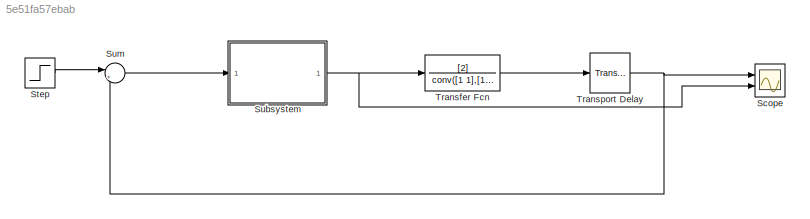
MODEL slx_5e51fa57ebab
KIND model
CONFIG AbsTol = auto
CONFIG EnableMultiTasking = off
CONFIG FixedStep = 0.5
CONFIG MaxStep = auto
CONFIG MinStep = auto
CONFIG RelTol = 1e-3
CONFIG SampleTimeConstraint = Unconstrained
CONFIG SolverName = FixedStepAuto
CONFIG StartTime = 0.0
CONFIG StopTime = 25
BLOCK [Scope] Scope
  Floating = off
  NumInputPorts = 2
  Ports = [2]
  ScopeSpecificationString = Simulink.scopes.TimeScopeBlockCfg('CurrentConfiguration', extmgr.ConfigurationSet(extmgr.Configuration('Core','General UI',true),extmgr.Configuration('Core','Source UI',true),extmgr.Configuration('Sources','WiredSimulink',true),extmgr.Configuration('Visuals','Time Domain',true,'SerializedDisplays',{struct('MinYLimReal','-0.22795','MaxYLimReal','2.05153','YLabelReal','','MinYLimMag','0.00000','MaxY...<+1320ch>
BLOCK [Step] Step
  SampleTime = 0.5
  Time = 0
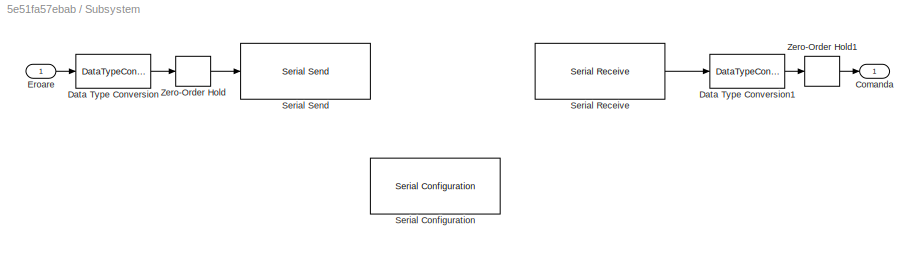
BLOCK [SubSystem] Subsystem
  Ports = [1, 1]
BLOCK [Outport] Subsystem/Comanda
  VectorParamsAs1DForOutWhenUnconnected = off
BLOCK [DataTypeConversion] Subsystem/Data Type Conversion
  OutDataTypeStr = single
  RndMeth = Floor
  SaturateOnIntegerOverflow = off
BLOCK [DataTypeConversion] Subsystem/Data Type Conversion1
  OutDataTypeStr = double
  RndMeth = Floor
  SaturateOnIntegerOverflow = off
BLOCK [Inport] Subsystem/Eroare
BLOCK [Reference] Subsystem/Serial Configuration  REF=instrumentlib/Serial Configuration
  ObjConstructor = serial('COM3');
  Ports = []
  Priority = -200000
  SourceBlock = instrumentlib/Serial Configuration
  SourceType = system.SerialConfiguration
BLOCK [Reference] Subsystem/Serial Receive  REF=instrumentlib/Serial Receive
  ObjConstructor = serial('COM3');
  Ports = [0, 1]
  SourceBlock = instrumentlib/Serial Receive
  SourceType = system.SerialReceive
BLOCK [Reference] Subsystem/Serial Send  REF=instrumentlib/Serial Send
  ObjConstructor = serial('COM3');
  Ports = [1]
  SourceBlock = instrumentlib/Serial Send
  SourceType = system.SerialSend
BLOCK [ZeroOrderHold] Subsystem/Zero-Order Hold
  SampleTime = 0.5
BLOCK [ZeroOrderHold] Subsystem/Zero-Order Hold1
  SampleTime = 0.5
BLOCK [Sum] Sum
  Inputs = |+-
  Ports = [2, 1]
BLOCK [TransferFcn] Transfer Fcn
  Denominator = conv([1 1],[10 1])
  Numerator = [2]
BLOCK [TransportDelay] Transport Delay
  Ports = [1, 1]
LINE Step:1 -> Sum:1
LINE Subsystem/Data Type Conversion1:1 -> Subsystem/Zero-Order Hold1:1
LINE Subsystem/Data Type Conversion:1 -> Subsystem/Zero-Order Hold:1
LINE Subsystem/Eroare:1 -> Subsystem/Data Type Conversion:1
LINE Subsystem/Serial Receive:1 -> Subsystem/Data Type Conversion1:1
LINE Subsystem/Zero-Order Hold1:1 -> Subsystem/Comanda:1
LINE Subsystem/Zero-Order Hold:1 -> Subsystem/Serial Send:1
NET Subsystem:1 -> Scope:2, Transfer Fcn:1
LINE Sum:1 -> Subsystem:1
LINE Transfer Fcn:1 -> Transport Delay:1
NET Transport Delay:1 -> Scope:1, Sum:2
note: NET lines group one-source signal fan-out (src -> all destinations, sorted); 1:1 wires keep LINE
